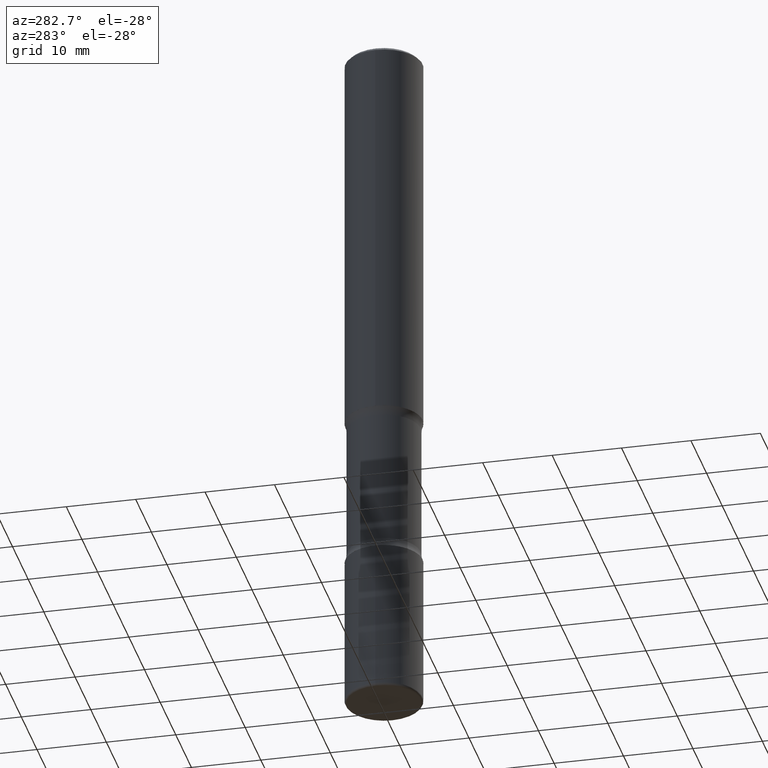
[diagram: clean part render]
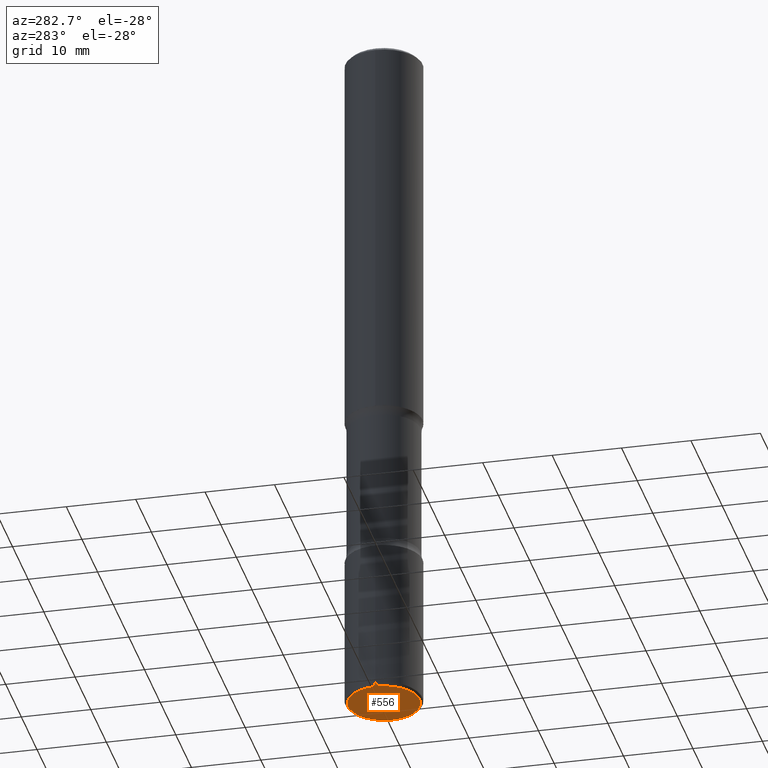
[diagram: same view with one face highlighted and labeled with its STEP entity id]
A machine part, auxiliary view. The second image highlights one B-rep face of the part: STEP entity #556.
In plain terms, the highlighted planar face has unit normal (0, -0, -1).
Its self-contained STEP definition (entity closure, byte-faithful):
#27 = AXIS2_PLACEMENT_3D ( 'NONE', #446, #87, #139 ) ;
#79 = CARTESIAN_POINT ( 'NONE',  ( 9.781875224740546387E-29, -1.396592535537258233E-14, -4.000000000000000000 ) ) ;
#87 = DIRECTION ( 'NONE',  ( 2.438088387897960049E-29, -3.491481338843145188E-15, -1.000000000000000000 ) ) ;
#88 = CARTESIAN_POINT ( 'NONE',  ( 0.2037500000000001810, -1.538870400095115901E-14, -4.000000000000000000 ) ) ;
#110 = EDGE_CURVE ( 'NONE', #360, #238, #366, .T. ) ;
#128 = CIRCLE ( 'NONE', #252, 0.2037500000000001810 ) ;
#139 = DIRECTION ( 'NONE',  ( -1.000000000000000000, 6.982962677686265922E-15, -4.876176775795935793E-29 ) ) ;
#149 = CARTESIAN_POINT ( 'NONE',  ( -0.2037500000000001810, -1.243871771603804148E-14, -4.000000000000000000 ) ) ;
#199 = ORIENTED_EDGE ( 'NONE', *, *, #110, .F. ) ;
#238 = VERTEX_POINT ( 'NONE', #88 ) ;
#252 = AXIS2_PLACEMENT_3D ( 'NONE', #400, #444, #525 ) ;
#318 = EDGE_LOOP ( 'NONE', ( #354, #199 ) ) ;
#352 = FACE_OUTER_BOUND ( 'NONE', #318, .T. ) ;
#354 = ORIENTED_EDGE ( 'NONE', *, *, #403, .F. ) ;
#360 = VERTEX_POINT ( 'NONE', #149 ) ;
#366 = CIRCLE ( 'NONE', #377, 0.2037500000000001810 ) ;
#377 = AXIS2_PLACEMENT_3D ( 'NONE', #79, #422, #467 ) ;
#400 = CARTESIAN_POINT ( 'NONE',  ( 9.781875224740546387E-29, -1.396592535537258233E-14, -4.000000000000000000 ) ) ;
#403 = EDGE_CURVE ( 'NONE', #238, #360, #128, .T. ) ;
#422 = DIRECTION ( 'NONE',  ( -2.445468806185136597E-29, 3.491481338843145583E-15, 1.000000000000000000 ) ) ;
#444 = DIRECTION ( 'NONE',  ( -2.445468806185136597E-29, 3.491481338843145583E-15, 1.000000000000000000 ) ) ;
#446 = CARTESIAN_POINT ( 'NONE',  ( 9.781875224740546387E-29, -1.396592535537258233E-14, -4.000000000000000000 ) ) ;
#467 = DIRECTION ( 'NONE',  ( 1.000000000000000000, -6.982962677686265922E-15, 0.000000000000000000 ) ) ;
#469 = PLANE ( 'NONE',  #27 ) ;
#525 = DIRECTION ( 'NONE',  ( 1.000000000000000000, -6.982962677686265922E-15, 0.000000000000000000 ) ) ;
#556 = ADVANCED_FACE ( 'NONE', ( #352 ), #469, .T. ) ;